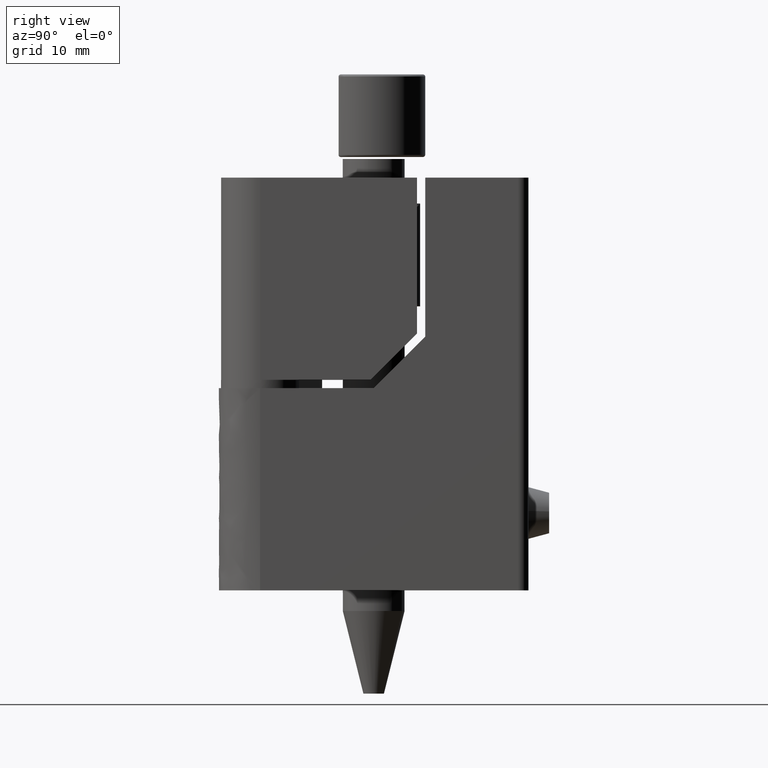
[diagram: clean part render]
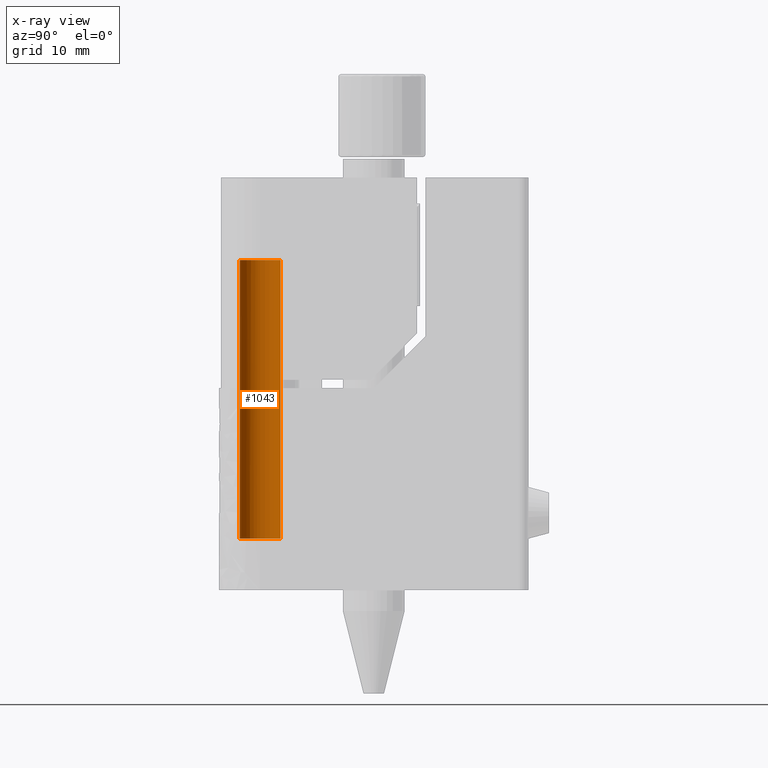
[diagram: x-ray — body ghosted, one internal face saturated and labeled with its STEP entity id]
A machine part, right view, then the same camera in x-ray: the body is ghosted and one INTERNAL B-rep face — a face not visible from any outside direction — is saturated and labeled: STEP entity #1043.
In plain terms, the highlighted face is a freeform B-spline surface patch.
Its self-contained STEP definition (entity closure, byte-faithful):
#772=CARTESIAN_POINT('',(0.122097084874725,-1.996269691659879,32.000001519918563));
#773=VERTEX_POINT('',#772);
#794=CARTESIAN_POINT('',(0.228201340374948,1.986938481238336,32.000001519918563));
#795=VERTEX_POINT('',#794);
#809=CARTESIAN_POINT('',(-2.000000094993710,0.0,32.000001519918563));
#810=VERTEX_POINT('',#809);
#811=CARTESIAN_POINT('',(-2.000000094993710,0.0,32.000001519918563));
#812=CARTESIAN_POINT('',(-2.000000094993710,2.000000094993710,32.000001519918555));
#813=CARTESIAN_POINT('',(0.0,2.000000094993710,32.000001519918563));
#814=CARTESIAN_POINT('',(0.114474475543697,2.000000094993710,32.000001519918548));
#815=CARTESIAN_POINT('',(0.228201340374948,1.986938481238336,32.000001519918555));
#823=(BOUNDED_CURVE()B_SPLINE_CURVE(2,(#811,#812,#813,#814,#815),.UNSPECIFIED.,.F.,.U.)B_SPLINE_CURVE_WITH_KNOTS((3,2,3),(0.0,0.250000000000000,0.269767755886045),.UNSPECIFIED.)CURVE()GEOMETRIC_REPRESENTATION_ITEM()RATIONAL_B_SPLINE_CURVE((1.0,0.707106781186548,1.0,0.976840633399272,0.957343736442052))REPRESENTATION_ITEM(''));
#824=EDGE_CURVE('',#810,#795,#823,.T.);
#826=CARTESIAN_POINT('',(-1.170165623268255,-1.621947222969473,32.000001519916239));
#827=VERTEX_POINT('',#826);
#828=CARTESIAN_POINT('',(-1.170165623268255,-1.621947222969472,32.000001519916246));
#829=CARTESIAN_POINT('',(-2.000000094993709,-1.023257106495332,32.000001519918548));
#830=CARTESIAN_POINT('',(-2.000000094993710,0.0,32.000001519918563));
#838=(BOUNDED_CURVE()B_SPLINE_CURVE(2,(#828,#829,#830),.UNSPECIFIED.,.F.,.U.)B_SPLINE_CURVE_WITH_KNOTS((3,3),(0.850743050384557,1.0),.UNSPECIFIED.)CURVE()GEOMETRIC_REPRESENTATION_ITEM()RATIONAL_B_SPLINE_CURVE((0.859068214726181,0.825134606387423,1.0))REPRESENTATION_ITEM(''));
#839=EDGE_CURVE('',#827,#810,#838,.T.);
#879=CARTESIAN_POINT('',(0.122097084874725,-1.996269691659878,32.000001519918570));
#880=CARTESIAN_POINT('',(0.061105529511101,-2.000000094993709,32.000001519918555));
#881=CARTESIAN_POINT('',(0.0,-2.000000094993710,32.000001519918563));
#882=CARTESIAN_POINT('',(-0.646152788065489,-2.000000094993709,32.000001519918548));
#883=CARTESIAN_POINT('',(-1.170165623268255,-1.621947222969473,32.000001519916239));
#891=(BOUNDED_CURVE()B_SPLINE_CURVE(2,(#879,#880,#881,#882,#883),.UNSPECIFIED.,.F.,.U.)B_SPLINE_CURVE_WITH_KNOTS((3,2,3),(0.739332962239968,0.750000000000000,0.850743050384558),.UNSPECIFIED.)CURVE()GEOMETRIC_REPRESENTATION_ITEM()RATIONAL_B_SPLINE_CURVE((0.976072041668915,0.987502787901039,1.0,0.881972174799124,0.859068214726181))REPRESENTATION_ITEM(''));
#892=EDGE_CURVE('',#773,#827,#891,.T.);
#916=CARTESIAN_POINT('',(0.228201340366259,1.986938481239223,5.000001709908281));
#917=VERTEX_POINT('',#916);
#933=CARTESIAN_POINT('',(0.228201340374948,1.986938481238336,32.000001519918563));
#934=CARTESIAN_POINT('',(0.228201340366259,1.986938481239223,5.000001709908281));
#935=QUASI_UNIFORM_CURVE('',1,(#933,#934),.UNSPECIFIED.,.F.,.U.);
#936=EDGE_CURVE('',#795,#917,#935,.T.);
#940=CARTESIAN_POINT('',(0.139507641927831,-1.995052226915502,5.000001709913301));
#941=VERTEX_POINT('',#940);
#942=CARTESIAN_POINT('',(0.122097084874725,-1.996269691659879,32.000001519918563));
#943=CARTESIAN_POINT('',(0.139507641927831,-1.995052226915502,5.000001709913301));
#944=QUASI_UNIFORM_CURVE('',1,(#942,#943),.UNSPECIFIED.,.F.,.U.);
#945=EDGE_CURVE('',#773,#941,#944,.T.);
#963=CARTESIAN_POINT('',(0.169067170402784,-1.993396878160208,32.675001515168795));
#964=CARTESIAN_POINT('',(0.145697130671106,-1.994826251023218,32.675001515168809));
#965=CARTESIAN_POINT('',(-1.874172606791217,-2.118366776529085,32.675001515168823));
#966=CARTESIAN_POINT('',(-1.996269691660151,-0.122097084868935,32.675001515168823));
#967=CARTESIAN_POINT('',(-2.118366776529085,1.874172606791217,32.675001515168823));
#968=CARTESIAN_POINT('',(-0.122097084868935,1.996269691660151,32.675001515168823));
#969=CARTESIAN_POINT('',(0.053462438732388,2.007007372115980,32.675001515168823));
#970=CARTESIAN_POINT('',(0.244162566575621,1.985105322714995,32.675001515168823));
#971=CARTESIAN_POINT('',(0.260204723967927,1.983262869185056,32.675001515168816));
#972=CARTESIAN_POINT('',(0.169067170402784,-1.993396878160208,4.308126714776763));
#973=CARTESIAN_POINT('',(0.145697130671106,-1.994826251023218,4.308126714776764));
#974=CARTESIAN_POINT('',(-1.874172606791217,-2.118366776529085,4.308126714776766));
#975=CARTESIAN_POINT('',(-1.996269691660151,-0.122097084868935,4.308126714776766));
#976=CARTESIAN_POINT('',(-2.118366776529085,1.874172606791217,4.308126714776766));
#977=CARTESIAN_POINT('',(-0.122097084868935,1.996269691660151,4.308126714776766));
#978=CARTESIAN_POINT('',(0.053462438732388,2.007007372115980,4.308126714776766));
#979=CARTESIAN_POINT('',(0.244162566575621,1.985105322714995,4.308126714776766));
#980=CARTESIAN_POINT('',(0.260204723967927,1.983262869185056,4.308126714776766));
#988=(BOUNDED_SURFACE()B_SPLINE_SURFACE(2,1,((#963,#972),(#964,#973),(#965,#974),(#966,#975),(#967,#976),(#968,#977),(#969,#978),(#970,#979),(#971,#980)),.UNSPECIFIED.,.F.,.F.,.U.)B_SPLINE_SURFACE_WITH_KNOTS((3,1,2,2,1,3),(2,2),(0.0,0.055674311811928,3.369382968187239,6.683091624562549,7.080736663327587,7.115964208194385),(0.0,28.366874800392051),.UNSPECIFIED.)GEOMETRIC_REPRESENTATION_ITEM()RATIONAL_B_SPLINE_SURFACE(((1.009841920387568,1.009841920387568),(1.004920960193784,1.004920960193784),(0.707106781186548,0.707106781186548),(1.0,1.0),(0.707106781186548,0.707106781186548),(1.0,1.0),(0.964852813742386,0.964852813742386),(0.935774536892308,0.935774536892308),(0.933408121598018,0.933408121598018)))REPRESENTATION_ITEM('')SURFACE());
#989=CARTESIAN_POINT('',(-0.156918198986729,1.993834762170852,5.000001709918319));
#990=VERTEX_POINT('',#989);
#991=CARTESIAN_POINT('',(-0.156918198986729,1.993834762170852,5.000001709918319));
#992=CARTESIAN_POINT('',(-0.078580217825149,2.000000094993490,5.000001709908280));
#993=CARTESIAN_POINT('',(0.0,2.000000094993490,5.000001709908280));
#994=CARTESIAN_POINT('',(0.114474475534924,2.000000094993490,5.000001709908280));
#995=CARTESIAN_POINT('',(0.228201340366259,1.986938481239223,5.000001709908281));
#1003=(BOUNDED_CURVE()B_SPLINE_CURVE(2,(#991,#992,#993,#994,#995),.UNSPECIFIED.,.F.,.U.)B_SPLINE_CURVE_WITH_KNOTS((3,2,3),(0.236331300619501,0.250000000000000,0.269767755884567),.UNSPECIFIED.)CURVE()GEOMETRIC_REPRESENTATION_ITEM()RATIONAL_B_SPLINE_CURVE((0.969723356144131,0.983986122565809,1.0,0.976840633401003,0.957343736444967))REPRESENTATION_ITEM(''));
#1004=EDGE_CURVE('',#990,#917,#1003,.T.);
#1005=ORIENTED_EDGE('',*,*,#1004,.F.);
#1006=CARTESIAN_POINT('',(-2.000000094993490,0.0,5.000001709908280));
#1007=VERTEX_POINT('',#1006);
#1008=CARTESIAN_POINT('',(-2.000000094993490,0.0,5.000001709908280));
#1009=CARTESIAN_POINT('',(-2.000000094993490,1.848781070983981,5.000001709908281));
#1010=CARTESIAN_POINT('',(-0.156918198986729,1.993834762170852,5.000001709918319));
#1018=(BOUNDED_CURVE()B_SPLINE_CURVE(2,(#1008,#1009,#1010),.UNSPECIFIED.,.F.,.U.)B_SPLINE_CURVE_WITH_KNOTS((3,3),(0.0,0.236331300619501),.UNSPECIFIED.)CURVE()GEOMETRIC_REPRESENTATION_ITEM()RATIONAL_B_SPLINE_CURVE((1.0,0.723120658620739,0.969723356144131))REPRESENTATION_ITEM(''));
#1019=EDGE_CURVE('',#1007,#990,#1018,.T.);
#1020=ORIENTED_EDGE('',*,*,#1019,.F.);
#1021=CARTESIAN_POINT('',(0.139507641927831,-1.995052226915502,5.000001709913301));
#1022=CARTESIAN_POINT('',(0.069836316588678,-1.999925363552337,5.000001709913219));
#1023=CARTESIAN_POINT('',(-0.000005132977976,-1.999926689989193,5.000001709913131));
#1024=CARTESIAN_POINT('',(-2.000002571858707,-1.999964674170959,5.000001709910622));
#1025=CARTESIAN_POINT('',(-2.000000094993490,0.0,5.000001709908280));
#1033=(BOUNDED_CURVE()B_SPLINE_CURVE(2,(#1021,#1022,#1023,#1024,#1025),.UNSPECIFIED.,.F.,.U.)B_SPLINE_CURVE_WITH_KNOTS((3,2,3),(0.737829682993632,0.750000000000000,1.0),.UNSPECIFIED.)CURVE()GEOMETRIC_REPRESENTATION_ITEM()RATIONAL_B_SPLINE_CURVE((0.972871408701970,0.985741586712099,1.0,0.707106781186548,1.0))REPRESENTATION_ITEM(''));
#1034=EDGE_CURVE('',#941,#1007,#1033,.T.);
#1035=ORIENTED_EDGE('',*,*,#1034,.F.);
#1036=ORIENTED_EDGE('',*,*,#945,.F.);
#1037=ORIENTED_EDGE('',*,*,#892,.T.);
#1038=ORIENTED_EDGE('',*,*,#839,.T.);
#1039=ORIENTED_EDGE('',*,*,#824,.T.);
#1040=ORIENTED_EDGE('',*,*,#936,.T.);
#1041=EDGE_LOOP('',(#1005,#1020,#1035,#1036,#1037,#1038,#1039,#1040));
#1042=FACE_OUTER_BOUND('',#1041,.T.);
#1043=ADVANCED_FACE('',(#1042),#988,.T.);